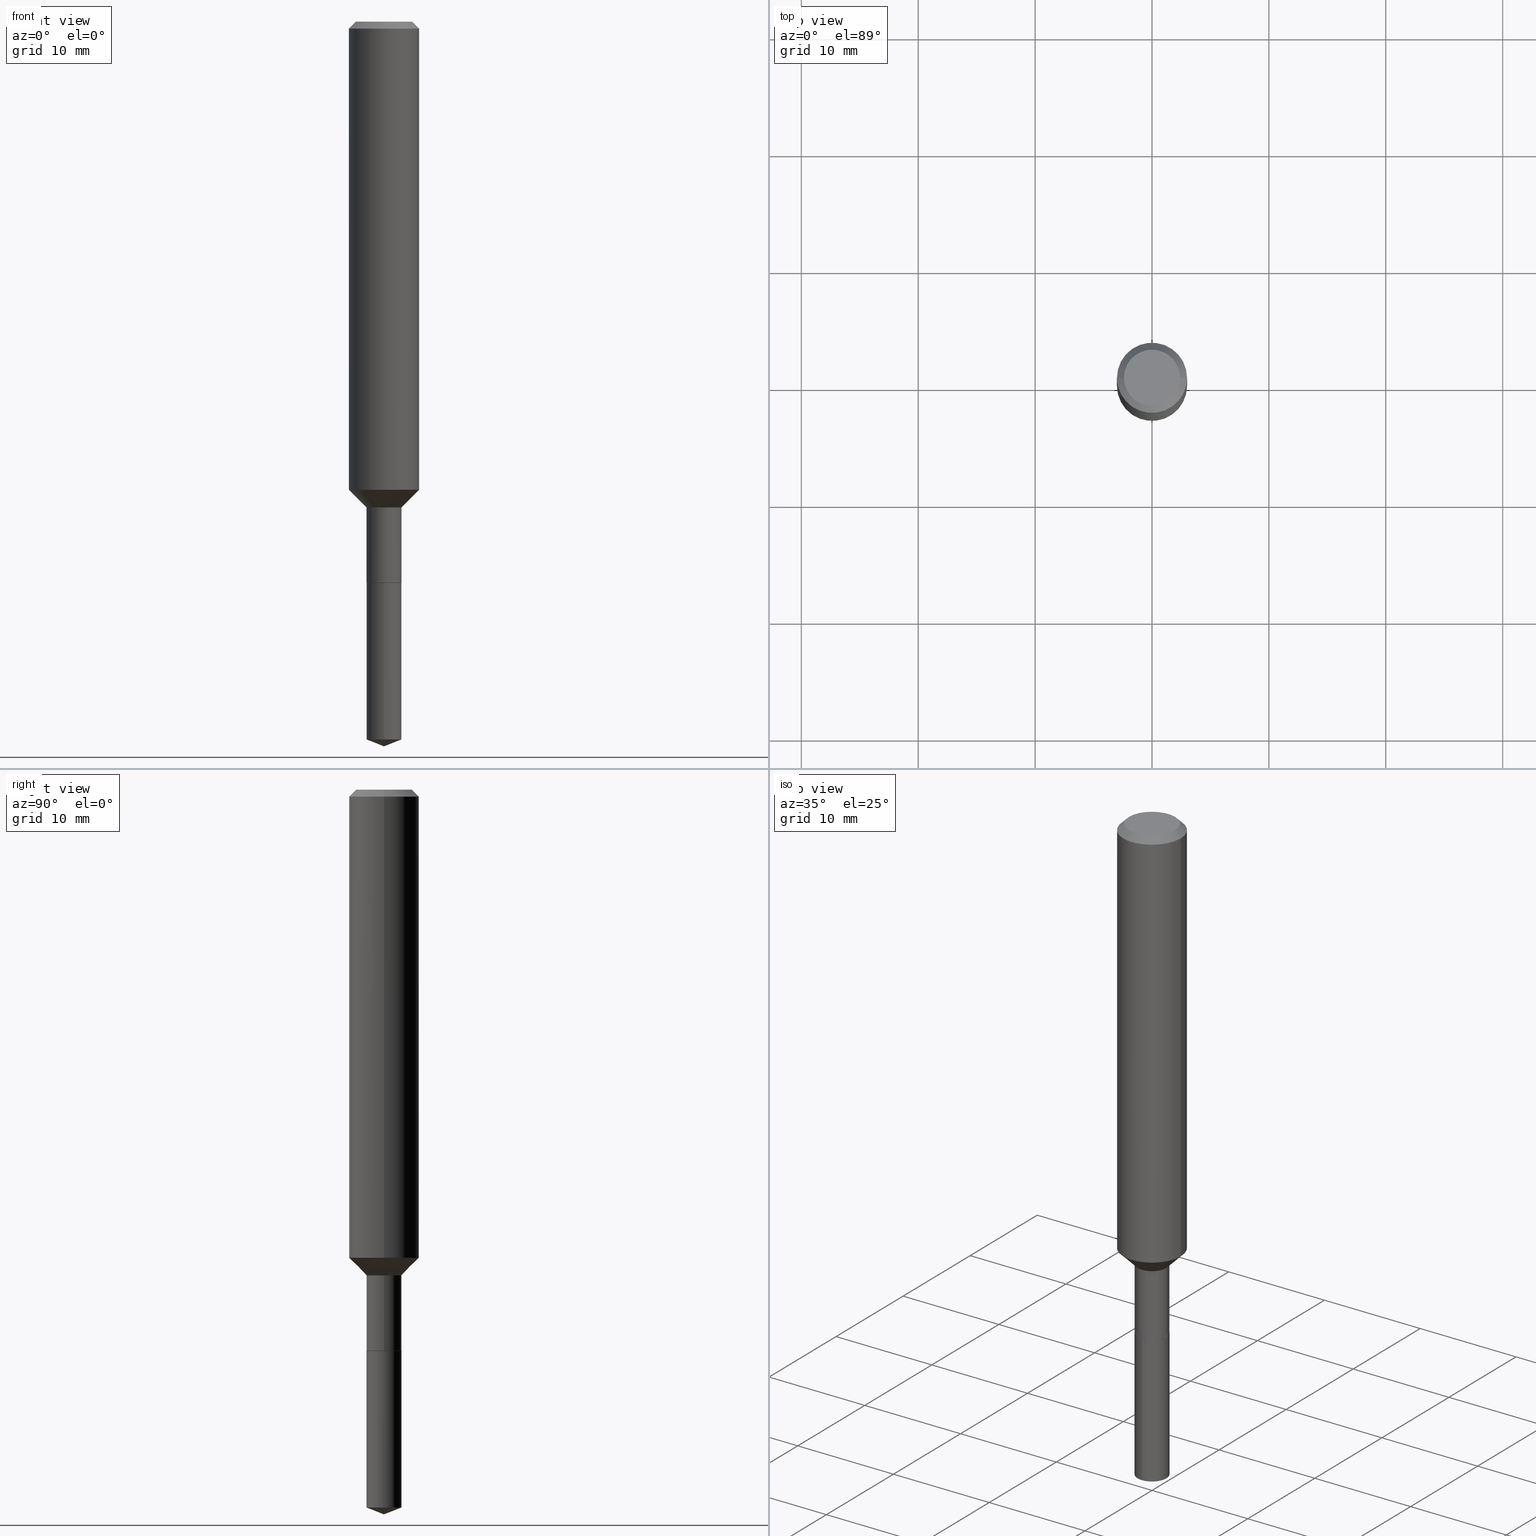
[diagram: canonical four-view strip — front | top / right | iso, engineering-drawing reading convention]
A machine part, canonical four-view strip (front | top / right | iso — engineering-drawing reading convention). The complete STEP part file that produces these views, byte-faithful:
ISO-10303-21;
HEADER;
FILE_DESCRIPTION (( 'STEP AP203' ),
    '1' );
FILE_NAME ('66400.STEP',
    '2024-04-24T22:09:27',
    ( '' ),
    ( '' ),
    'SwSTEP 2.0',
    'SolidWorks 2023',
    '' );
FILE_SCHEMA (( 'CONFIG_CONTROL_DESIGN' ));
ENDSEC;

DATA;
#1 = DATE_AND_TIME ( #181, #434 ) ;
#2 = CARTESIAN_POINT ( 'NONE',  ( 4.621202403048053204E-29, -6.597852286011892490E-15, -1.889700000000000157 ) ) ;
#3 = COORDINATED_UNIVERSAL_TIME_OFFSET ( 5, 0, .BEHIND. ) ;
#4 = DIRECTION ( 'NONE',  ( -6.982962677686265922E-15, -1.000000000000000000, 4.626330217890370914E-15 ) ) ;
#5 = ADVANCED_FACE ( 'NONE', ( #487 ), #78, .T. ) ;
#6 = ADVANCED_FACE ( 'NONE', ( #456 ), #116, .T. ) ;
#7 = COORDINATED_UNIVERSAL_TIME_OFFSET ( 5, 0, .BEHIND. ) ;
#8 = AXIS2_PLACEMENT_3D ( 'NONE', #68, #286, #324 ) ;
#9 = DIRECTION ( 'NONE',  ( 1.000000000000000000, -6.982962677686266711E-15, 4.876176775795935232E-29 ) ) ;
#10 = CC_DESIGN_PERSON_AND_ORGANIZATION_ASSIGNMENT ( #196, #232, ( #223 ) ) ;
#11 = PERSON_AND_ORGANIZATION_ROLE ( 'creator' ) ;
#12 = DIRECTION ( 'NONE',  ( -2.445468806185136597E-29, 3.491481338843145583E-15, 1.000000000000000000 ) ) ;
#13 = DIRECTION ( 'NONE',  ( -2.434988852863249163E-29, 3.506489228481988303E-15, 1.000000000000000000 ) ) ;
#14 = VERTEX_POINT ( 'NONE', #375 ) ;
#15 = PERSON_AND_ORGANIZATION ( #180, #282 ) ;
#16 = FACE_OUTER_BOUND ( 'NONE', #337, .T. ) ;
#17 = APPROVAL_PERSON_ORGANIZATION ( #486, #52, #409 ) ;
#18 = CARTESIAN_POINT ( 'NONE',  ( -0.05854999999999998400, -6.181829514224353895E-15, -1.889700000000000157 ) ) ;
#19 = FACE_OUTER_BOUND ( 'NONE', #391, .T. ) ;
#20 = EDGE_CURVE ( 'NONE', #14, #46, #423, .T. ) ;
#21 = DIRECTION ( 'NONE',  ( 0.7071067811865491270, -2.468850131082274021E-15, 0.7071067811865459074 ) ) ;
#22 = EDGE_LOOP ( 'NONE', ( #360, #191, #289, #396 ) ) ;
#23 = CC_DESIGN_PERSON_AND_ORGANIZATION_ASSIGNMENT ( #431, #47, ( #415 ) ) ;
#24 = CARTESIAN_POINT ( 'NONE',  ( -0.05904999999999988036, -5.734160374244706712E-15, -1.889200000000000212 ) ) ;
#25 = ORIENTED_EDGE ( 'NONE', *, *, #401, .T. ) ;
#26 = DIRECTION ( 'NONE',  ( -2.434988852863248882E-29, 3.506489228481988303E-15, 1.000000000000000000 ) ) ;
#27 = ORIENTED_EDGE ( 'NONE', *, *, #318, .T. ) ;
#28 = ADVANCED_FACE ( 'NONE', ( #149 ), #311, .F. ) ;
#29 = APPLICATION_CONTEXT ( 'configuration controlled 3d designs of mechanical parts and assemblies' ) ;
#30 = FACE_OUTER_BOUND ( 'NONE', #253, .T. ) ;
#31 = ORIENTED_EDGE ( 'NONE', *, *, #112, .F. ) ;
#32 = CIRCLE ( 'NONE', #8, 0.05904999999999998445 ) ;
#33 = CARTESIAN_POINT ( 'NONE',  ( 0.000000000000000000, 0.000000000000000000, 0.000000000000000000 ) ) ;
#34 = VERTEX_POINT ( 'NONE', #461 ) ;
#35 = CARTESIAN_POINT ( 'NONE',  ( 4.000297873157646549E-29, -5.711365174079618268E-15, -1.635800000000000143 ) ) ;
#36 = CARTESIAN_POINT ( 'NONE',  ( 0.05854999999999998400, -7.006704750790423614E-15, -1.889700000000000157 ) ) ;
#37 = EDGE_CURVE ( 'NONE', #174, #439, #309, .T. ) ;
#38 = PERSON_AND_ORGANIZATION_ROLE ( 'design_owner' ) ;
#39 = VERTEX_POINT ( 'NONE', #218 ) ;
#40 = FACE_OUTER_BOUND ( 'NONE', #420, .T. ) ;
#41 = DIRECTION ( 'NONE',  ( 6.611014441532053178E-15, 0.9304175679820252398, 0.3665012267242951927 ) ) ;
#42 = DIRECTION ( 'NONE',  ( 1.000000000000000000, -6.982962677686270655E-15, 0.000000000000000000 ) ) ;
#43 = DIRECTION ( 'NONE',  ( -6.982962677686269077E-15, -1.000000000000000000, 3.498627837350056682E-15 ) ) ;
#44 = EDGE_CURVE ( 'NONE', #452, #331, #339, .T. ) ;
#45 = APPROVAL_STATUS ( 'not_yet_approved' ) ;
#46 = VERTEX_POINT ( 'NONE', #82 ) ;
#47 = PERSON_AND_ORGANIZATION_ROLE ( 'classification_officer' ) ;
#48 = CIRCLE ( 'NONE', #88, 0.05904999999999988036 ) ;
#49 = DIRECTION ( 'NONE',  ( -6.982962677686265922E-15, -1.000000000000000000, 4.626330217890370125E-15 ) ) ;
#50 = DIRECTION ( 'NONE',  ( 2.438088387897960049E-29, -3.491481338843145188E-15, -1.000000000000000000 ) ) ;
#51 = DATE_AND_TIME ( #275, #216 ) ;
#52 = APPROVAL ( #188, 'UNSPECIFIED' ) ;
#53 = ADVANCED_FACE ( 'NONE', ( #224 ), #63, .T. ) ;
#54 = DIRECTION ( 'NONE',  ( 0.7071067811865459074, -7.319954787623249734E-15, -0.7071067811865491270 ) ) ;
#55 = CARTESIAN_POINT ( 'NONE',  ( 2.358133508849003952E-46, -3.366789680499277518E-32, -9.642868896486260050E-18 ) ) ;
#56 = APPROVAL ( #237, 'UNSPECIFIED' ) ;
#57 = VECTOR ( 'NONE', #242, 39.37007874015748143 ) ;
#58 = CC_DESIGN_APPROVAL ( #56, ( #415 ) ) ;
#59 = DIRECTION ( 'NONE',  ( -2.445468806185136597E-29, 3.491481338843145583E-15, 1.000000000000000000 ) ) ;
#60 = EDGE_CURVE ( 'NONE', #69, #448, #427, .T. ) ;
#61 = CARTESIAN_POINT ( 'NONE',  ( 3.855892940152414609E-29, -5.505193201020929624E-15, -1.576750000000000096 ) ) ;
#62 = CARTESIAN_POINT ( 'NONE',  ( 4.621202403048053204E-29, -6.597852286011892490E-15, -1.889700000000000157 ) ) ;
#63 = CONICAL_SURFACE ( 'NONE', #315, 99.94676754583846900, 1.195550537616114406 ) ;
#64 = ORIENTED_EDGE ( 'NONE', *, *, #243, .F. ) ;
#65 = AXIS2_PLACEMENT_3D ( 'NONE', #204, #326, #399 ) ;
#66 = LINE ( 'NONE', #477, #57 ) ;
#67 = VERTEX_POINT ( 'NONE', #84 ) ;
#68 = CARTESIAN_POINT ( 'NONE',  ( 4.621202403048053204E-29, -6.597852286011892490E-15, -1.889700000000000157 ) ) ;
#69 = VERTEX_POINT ( 'NONE', #269 ) ;
#70 = CARTESIAN_POINT ( 'NONE',  ( 0.05904999999999988036, -6.123709120196991610E-15, -1.635800000000000143 ) ) ;
#71 = ORIENTED_EDGE ( 'NONE', *, *, #454, .T. ) ;
#72 = CIRCLE ( 'NONE', #247, 0.05854999999999998400 ) ;
#73 = ORIENTED_EDGE ( 'NONE', *, *, #402, .T. ) ;
#74 =( NAMED_UNIT ( * ) PLANE_ANGLE_UNIT ( ) SI_UNIT ( $, .RADIAN. ) );
#75 = DIRECTION ( 'NONE',  ( -2.438088387897960049E-29, 3.491481338843145188E-15, 1.000000000000000000 ) ) ;
#76 = APPROVAL ( #45, 'UNSPECIFIED' ) ;
#77 =( NAMED_UNIT ( * ) SI_UNIT ( $, .STERADIAN. ) SOLID_ANGLE_UNIT ( ) );
#78 = CYLINDRICAL_SURFACE ( 'NONE', #412, 0.05904999999999988036 ) ;
#79 = AXIS2_PLACEMENT_3D ( 'NONE', #236, #317, #49 ) ;
#80 = LOCAL_TIME ( 18, 9, 27.00000000000000000, #161 ) ;
#81 = LENGTH_MEASURE_WITH_UNIT ( LENGTH_MEASURE( 0.02539999999999999897 ), #304 );
#82 = CARTESIAN_POINT ( 'NONE',  ( 4.195754854663982138E-16, 0.05904999999999338556, -1.889700000000000379 ) ) ;
#83 = APPROVAL_DATE_TIME ( #1, #52 ) ;
#84 = CARTESIAN_POINT ( 'NONE',  ( 0.05904999999999988036, -6.123709120196991610E-15, -1.635800000000000143 ) ) ;
#85 = DIRECTION ( 'NONE',  ( -2.434988852863249163E-29, 3.506489228481988303E-15, 1.000000000000000000 ) ) ;
#86 = AXIS2_PLACEMENT_3D ( 'NONE', #153, #75, #221 ) ;
#87 = DATE_AND_TIME ( #447, #103 ) ;
#88 = AXIS2_PLACEMENT_3D ( 'NONE', #351, #348, #93 ) ;
#89 = CC_DESIGN_SECURITY_CLASSIFICATION ( #415, ( #223 ) ) ;
#90 = CARTESIAN_POINT ( 'NONE',  ( 4.621202403048053204E-29, -6.597852286011892490E-15, -1.889700000000000157 ) ) ;
#91 = EDGE_CURVE ( 'NONE', #294, #439, #358, .T. ) ;
#92 = COORDINATED_UNIVERSAL_TIME_OFFSET ( 5, 0, .BEHIND. ) ;
#93 = DIRECTION ( 'NONE',  ( 1.000000000000000000, -6.982962677686270655E-15, 0.000000000000000000 ) ) ;
#94 = DATE_TIME_ROLE ( 'classification_date' ) ;
#95 = CARTESIAN_POINT ( 'NONE',  ( -0.05904999999999988036, -5.291789688613279563E-15, -1.635800000000000143 ) ) ;
#96 = AXIS2_PLACEMENT_3D ( 'NONE', #335, #85, #372 ) ;
#97 = CARTESIAN_POINT ( 'NONE',  ( 0.1180999999999999966, -9.071566814582237199E-16, -0.02362000000000014088 ) ) ;
#98 = CARTESIAN_POINT ( 'NONE',  ( 0.09447999999999998066, -7.704367267948738690E-16, -1.928573779296752193E-17 ) ) ;
#99 = DIRECTION ( 'NONE',  ( 1.000000000000000000, -6.982962677686265922E-15, 0.000000000000000000 ) ) ;
#100 = ORIENTED_EDGE ( 'NONE', *, *, #363, .F. ) ;
#101 = DIRECTION ( 'NONE',  ( 1.000000000000000000, -6.982962677686265922E-15, 0.000000000000000000 ) ) ;
#102 = ORIENTED_EDGE ( 'NONE', *, *, #332, .T. ) ;
#103 = LOCAL_TIME ( 18, 9, 27.00000000000000000, #7 ) ;
#104 = CYLINDRICAL_SURFACE ( 'NONE', #386, 0.1181000000000000799 ) ;
#105 = ORIENTED_EDGE ( 'NONE', *, *, #91, .F. ) ;
#106 = CARTESIAN_POINT ( 'NONE',  ( 4.621202403048053204E-29, -6.597852286011892490E-15, -1.889700000000000157 ) ) ;
#107 = ORIENTED_EDGE ( 'NONE', *, *, #393, .F. ) ;
#108 = CALENDAR_DATE ( 2024, 24, 4 ) ;
#109 = VERTEX_POINT ( 'NONE', #97 ) ;
#110 = CLOSED_SHELL ( 'NONE', ( #394, #429, #381, #481, #6, #5, #444, #333, #340, #136, #28, #308 ) ) ;
#111 = CIRCLE ( 'NONE', #380, 0.1181000000000001632 ) ;
#112 = EDGE_CURVE ( 'NONE', #39, #67, #48, .T. ) ;
#113 = ORIENTED_EDGE ( 'NONE', *, *, #212, .F. ) ;
#114 = ORIENTED_EDGE ( 'NONE', *, *, #60, .T. ) ;
#115 = CARTESIAN_POINT ( 'NONE',  ( 0.05854999999999998400, -7.006704750790423614E-15, -1.889700000000000157 ) ) ;
#116 = CYLINDRICAL_SURFACE ( 'NONE', #303, 0.05904999999999988036 ) ;
#117 = AXIS2_PLACEMENT_3D ( 'NONE', #349, #164, #382 ) ;
#118 = PERSON_AND_ORGANIZATION ( #180, #282 ) ;
#119 = CARTESIAN_POINT ( 'NONE',  ( 5.983519541380308679E-29, -8.502268739700643296E-15, -2.440900000000000070 ) ) ;
#120 = DIRECTION ( 'NONE',  ( 1.000000000000000000, -6.982962677686267499E-15, 4.875432709231658792E-29 ) ) ;
#121 = CARTESIAN_POINT ( 'NONE',  ( -0.05854999999999998400, -6.179180287050244272E-15, -1.889700000000000157 ) ) ;
#122 = APPROVAL_ROLE ( '' ) ;
#123 = VECTOR ( 'NONE', #430, 39.37007874015748854 ) ;
#124 = DIRECTION ( 'NONE',  ( -2.434988852863248882E-29, 3.506489228481988303E-15, 1.000000000000000000 ) ) ;
#125 = VECTOR ( 'NONE', #262, 39.37007874015748854 ) ;
#126 = LINE ( 'NONE', #95, #230 ) ;
#127 = PRODUCT_DEFINITION ( 'UNKNOWN', '', #223, #235 ) ;
#128 = EDGE_CURVE ( 'NONE', #439, #46, #159, .T. ) ;
#129 = CARTESIAN_POINT ( 'NONE',  ( 4.619979668644960403E-29, -6.596106545342470986E-15, -1.889200000000000212 ) ) ;
#130 = PLANE ( 'NONE',  #147 ) ;
#131 = FACE_OUTER_BOUND ( 'NONE', #483, .T. ) ;
#132 = ORIENTED_EDGE ( 'NONE', *, *, #20, .F. ) ;
#133 = DIRECTION ( 'NONE',  ( 2.445468806185136597E-29, -3.491481338843145583E-15, -1.000000000000000000 ) ) ;
#134 = ORIENTED_EDGE ( 'NONE', *, *, #370, .T. ) ;
#135 = CC_DESIGN_PERSON_AND_ORGANIZATION_ASSIGNMENT ( #118, #38, ( #418 ) ) ;
#136 = ADVANCED_FACE ( 'NONE', ( #16 ), #130, .F. ) ;
#137 = FACE_OUTER_BOUND ( 'NONE', #207, .T. ) ;
#138 = ORIENTED_EDGE ( 'NONE', *, *, #332, .F. ) ;
#139 = VECTOR ( 'NONE', #26, 39.37007874015748143 ) ;
#140 = CONICAL_SURFACE ( 'NONE', #301, 0.1180999999999999966, 0.7853981633974460586 ) ;
#141 = DIRECTION ( 'NONE',  ( -2.445468806185136597E-29, 3.491481338843145583E-15, 1.000000000000000000 ) ) ;
#142 = ORIENTED_EDGE ( 'NONE', *, *, #91, .T. ) ;
#143 = EDGE_CURVE ( 'NONE', #410, #331, #392, .T. ) ;
#144 = DIRECTION ( 'NONE',  ( -2.445468806185136597E-29, 3.491481338843145583E-15, 1.000000000000000000 ) ) ;
#145 = ORIENTED_EDGE ( 'NONE', *, *, #473, .F. ) ;
#146 = ORIENTED_EDGE ( 'NONE', *, *, #284, .F. ) ;
#147 = AXIS2_PLACEMENT_3D ( 'NONE', #55, #50, #202 ) ;
#148 = DIRECTION ( 'NONE',  ( -6.982962677686265922E-15, -1.000000000000000000, 4.626330217890370914E-15 ) ) ;
#149 = FACE_OUTER_BOUND ( 'NONE', #478, .T. ) ;
#150 = LINE ( 'NONE', #261, #155 ) ;
#151 = ORIENTED_EDGE ( 'NONE', *, *, #128, .T. ) ;
#152 = CYLINDRICAL_SURFACE ( 'NONE', #356, 0.05904999999999998445 ) ;
#153 = CARTESIAN_POINT ( 'NONE',  ( 4.621202403048053204E-29, -6.597852286011892490E-15, -1.889700000000000157 ) ) ;
#154 = CONICAL_SURFACE ( 'NONE', #162, 99.94676754583846900, 1.195550537616114406 ) ;
#155 = VECTOR ( 'NONE', #411, 39.37007874015748143 ) ;
#156 = PERSON_AND_ORGANIZATION ( #180, #282 ) ;
#157 = DIRECTION ( 'NONE',  ( -2.434988852863249163E-29, 3.506489228481988303E-15, 1.000000000000000000 ) ) ;
#158 = CARTESIAN_POINT ( 'NONE',  ( 0.1180999999999999966, -8.926936027602933910E-16, -0.02362000000000014088 ) ) ;
#159 = LINE ( 'NONE', #203, #201 ) ;
#160 = VERTEX_POINT ( 'NONE', #353 ) ;
#161 = COORDINATED_UNIVERSAL_TIME_OFFSET ( 5, 0, .BEHIND. ) ;
#162 = AXIS2_PLACEMENT_3D ( 'NONE', #387, #13, #346 ) ;
#163 = AXIS2_PLACEMENT_3D ( 'NONE', #374, #341, #404 ) ;
#164 = DIRECTION ( 'NONE',  ( -2.434988852863249163E-29, 3.506489228481988303E-15, 1.000000000000000000 ) ) ;
#165 = DIRECTION ( 'NONE',  ( 6.982962677686265922E-15, 1.000000000000000000, -3.506489228481988303E-15 ) ) ;
#166 = DIRECTION ( 'NONE',  ( 1.000000000000000000, -6.982962677686270655E-15, 0.000000000000000000 ) ) ;
#167 = VECTOR ( 'NONE', #229, 39.37007874015748143 ) ;
#168 = LINE ( 'NONE', #173, #139 ) ;
#169 = APPROVAL_PERSON_ORGANIZATION ( #228, #56, #122 ) ;
#170 = ORIENTED_EDGE ( 'NONE', *, *, #284, .T. ) ;
#171 = DIRECTION ( 'NONE',  ( 1.000000000000000000, -6.982962677686265922E-15, 0.000000000000000000 ) ) ;
#172 = ORIENTED_EDGE ( 'NONE', *, *, #143, .F. ) ;
#173 = CARTESIAN_POINT ( 'NONE',  ( -4.123439461173276378E-16, -0.05905000000000658333, -1.889699999999999713 ) ) ;
#174 = VERTEX_POINT ( 'NONE', #470 ) ;
#175 = CARTESIAN_POINT ( 'NONE',  ( 4.195754854663982138E-16, 0.05904999999999154675, -2.417639586414937813 ) ) ;
#176 = EDGE_LOOP ( 'NONE', ( #71, #170, #249, #446 ) ) ;
#177 = AXIS2_PLACEMENT_3D ( 'NONE', #438, #475, #210 ) ;
#178 = CARTESIAN_POINT ( 'NONE',  ( -0.1181000000000000799, 8.391509709326788873E-16, -5.809262341591047988E-30 ) ) ;
#179 = ORIENTED_EDGE ( 'NONE', *, *, #370, .F. ) ;
#180 = PERSON ( 'UNSPECIFIED', 'UNSPECIFIED', 'UNSPECIFIED', ('UNSPECIFIED'), ('UNSPECIFIED'), ('UNSPECIFIED') ) ;
#181 = CALENDAR_DATE ( 2024, 24, 4 ) ;
#182 = DIRECTION ( 'NONE',  ( -2.445468806185136597E-29, 3.491481338843145583E-15, 1.000000000000000000 ) ) ;
#183 = ORIENTED_EDGE ( 'NONE', *, *, #243, .T. ) ;
#184 = AXIS2_PLACEMENT_3D ( 'NONE', #129, #462, #281 ) ;
#185 = CONICAL_SURFACE ( 'NONE', #163, 0.05904999999999988036, 0.7853981633974506105 ) ;
#186 = CARTESIAN_POINT ( 'NONE',  ( 4.621202403048053204E-29, -6.597852286011892490E-15, -1.889700000000000157 ) ) ;
#187 = CARTESIAN_POINT ( 'NONE',  ( 0.000000000000000000, 0.000000000000000000, 0.000000000000000000 ) ) ;
#188 = APPROVAL_STATUS ( 'not_yet_approved' ) ;
#189 = ORIENTED_EDGE ( 'NONE', *, *, #143, .T. ) ;
#190 = APPROVAL_ROLE ( '' ) ;
#191 = ORIENTED_EDGE ( 'NONE', *, *, #473, .T. ) ;
#192 = CONICAL_SURFACE ( 'NONE', #465, 0.1180999999999999966, 0.7853981633974460586 ) ;
#193 = APPROVAL_DATE_TIME ( #51, #56 ) ;
#194 = ADVANCED_FACE ( 'NONE', ( #19 ), #154, .T. ) ;
#195 = CARTESIAN_POINT ( 'NONE',  ( 5.776197320209327532E-31, -8.246878922347559293E-17, -0.02362000000000014088 ) ) ;
#196 = PERSON_AND_ORGANIZATION ( #180, #282 ) ;
#197 = DIRECTION ( 'NONE',  ( 1.000000000000000000, -6.982962677686270655E-15, 0.000000000000000000 ) ) ;
#198 = ORIENTED_EDGE ( 'NONE', *, *, #128, .F. ) ;
#199 = CYLINDRICAL_SURFACE ( 'NONE', #117, 0.05904999999999998445 ) ;
#200 = EDGE_CURVE ( 'NONE', #160, #34, #440, .T. ) ;
#201 = VECTOR ( 'NONE', #124, 39.37007874015748143 ) ;
#202 = DIRECTION ( 'NONE',  ( -1.000000000000000000, 6.982962677686265922E-15, -4.876176775795935793E-29 ) ) ;
#203 = CARTESIAN_POINT ( 'NONE',  ( 4.195754854663851976E-16, 0.05904999999999338556, -1.889700000000000379 ) ) ;
#204 = CARTESIAN_POINT ( 'NONE',  ( 4.716267017698007905E-46, -6.733579360998555036E-32, -1.928573779297252010E-17 ) ) ;
#205 = VECTOR ( 'NONE', #252, 39.37007874015748143 ) ;
#206 = DIRECTION ( 'NONE',  ( -6.497071151882107214E-15, -0.9304175679820226863, 0.3665012267243017985 ) ) ;
#207 = EDGE_LOOP ( 'NONE', ( #489, #405, #271, #369 ) ) ;
#208 = LINE ( 'NONE', #328, #240 ) ;
#209 = VERTEX_POINT ( 'NONE', #121 ) ;
#210 = DIRECTION ( 'NONE',  ( 1.000000000000000000, -6.982962677686266711E-15, 4.876176775795936353E-29 ) ) ;
#211 = ORIENTED_EDGE ( 'NONE', *, *, #200, .T. ) ;
#212 = EDGE_CURVE ( 'NONE', #209, #410, #319, .T. ) ;
#213 = DIRECTION ( 'NONE',  ( -1.000000000000000000, 6.982962677686266711E-15, 0.000000000000000000 ) ) ;
#214 = CONICAL_SURFACE ( 'NONE', #449, 0.05854999999999998400, 0.7853981633974482790 ) ;
#215 = ORIENTED_EDGE ( 'NONE', *, *, #334, .T. ) ;
#216 = LOCAL_TIME ( 18, 9, 27.00000000000000000, #92 ) ;
#217 = ORIENTED_EDGE ( 'NONE', *, *, #393, .T. ) ;
#218 = CARTESIAN_POINT ( 'NONE',  ( -0.05904999999999988036, -5.734160374244706712E-15, -1.635800000000000143 ) ) ;
#219 = ADVANCED_FACE ( 'NONE', ( #468 ), #428, .F. ) ;
#220 =( CONVERSION_BASED_UNIT ( 'INCH', #81 ) LENGTH_UNIT ( ) NAMED_UNIT ( #408 ) );
#221 = DIRECTION ( 'NONE',  ( 1.000000000000000000, -6.982962677686265922E-15, 4.876176775795935793E-29 ) ) ;
#222 = AXIS2_PLACEMENT_3D ( 'NONE', #313, #464, #166 ) ;
#223 = PRODUCT_DEFINITION_FORMATION_WITH_SPECIFIED_SOURCE ( 'ANY', '', #418, .NOT_KNOWN. ) ;
#224 = FACE_OUTER_BOUND ( 'NONE', #459, .T. ) ;
#225 = DATE_TIME_ROLE ( 'creation_date' ) ;
#226 = VERTEX_POINT ( 'NONE', #283 ) ;
#227 = EDGE_CURVE ( 'NONE', #439, #294, #291, .T. ) ;
#228 = PERSON_AND_ORGANIZATION ( #180, #282 ) ;
#229 = DIRECTION ( 'NONE',  ( -0.7071067811865459074, 2.468850131082240100E-15, -0.7071067811865491270 ) ) ;
#230 = VECTOR ( 'NONE', #385, 39.37007874015748143 ) ;
#231 = AXIS2_PLACEMENT_3D ( 'NONE', #484, #144, #297 ) ;
#232 = PERSON_AND_ORGANIZATION_ROLE ( 'design_supplier' ) ;
#233 = DIRECTION ( 'NONE',  ( -2.445468806185136597E-29, 3.491481338843145583E-15, 1.000000000000000000 ) ) ;
#234 = ORIENTED_EDGE ( 'NONE', *, *, #314, .T. ) ;
#235 = DESIGN_CONTEXT ( 'detailed design', #29, 'design' ) ;
#236 = CARTESIAN_POINT ( 'NONE',  ( 5.906729410953660038E-29, -8.449066759065107176E-15, -2.417639586414937813 ) ) ;
#237 = APPROVAL_STATUS ( 'not_yet_approved' ) ;
#238 = FACE_OUTER_BOUND ( 'NONE', #384, .T. ) ;
#239 = AXIS2_PLACEMENT_3D ( 'NONE', #472, #359, #171 ) ;
#240 = VECTOR ( 'NONE', #206, 39.37007874015748854 ) ;
#241 = CARTESIAN_POINT ( 'NONE',  ( -0.1180999999999999966, 7.422191030112725094E-16, -0.02362000000000014088 ) ) ;
#242 = DIRECTION ( 'NONE',  ( -2.445468806185136877E-29, 3.491481338843145188E-15, 1.000000000000000000 ) ) ;
#243 = EDGE_CURVE ( 'NONE', #448, #109, #435, .T. ) ;
#244 = EDGE_CURVE ( 'NONE', #226, #109, #350, .T. ) ;
#245 = FACE_OUTER_BOUND ( 'NONE', #323, .T. ) ;
#246 = ORIENTED_EDGE ( 'NONE', *, *, #37, .F. ) ;
#247 = AXIS2_PLACEMENT_3D ( 'NONE', #62, #368, #99 ) ;
#248 = LINE ( 'NONE', #70, #480 ) ;
#249 = ORIENTED_EDGE ( 'NONE', *, *, #200, .F. ) ;
#250 = FACE_OUTER_BOUND ( 'NONE', #364, .T. ) ;
#251 = ORIENTED_EDGE ( 'NONE', *, *, #352, .F. ) ;
#252 = DIRECTION ( 'NONE',  ( -2.445468806185136877E-29, 3.491481338843145188E-15, 1.000000000000000000 ) ) ;
#253 = EDGE_LOOP ( 'NONE', ( #138, #183, #255, #327 ) ) ;
#254 = CLOSED_SHELL ( 'NONE', ( #267, #53, #194, #490, #219 ) ) ;
#255 = ORIENTED_EDGE ( 'NONE', *, *, #302, .T. ) ;
#256 = LOCAL_TIME ( 18, 9, 27.00000000000000000, #416 ) ;
#257 = DIRECTION ( 'NONE',  ( -2.434988852863249163E-29, 3.506489228481988303E-15, 1.000000000000000000 ) ) ;
#258 = ORIENTED_EDGE ( 'NONE', *, *, #314, .F. ) ;
#259 = DIRECTION ( 'NONE',  ( 0.000000000000000000, 0.000000000000000000, 1.000000000000000000 ) ) ;
#260 = ORIENTED_EDGE ( 'NONE', *, *, #421, .F. ) ;
#261 = CARTESIAN_POINT ( 'NONE',  ( -0.05904999999999988036, 4.195754854663383097E-16, -2.904631170795515936E-30 ) ) ;
#262 = DIRECTION ( 'NONE',  ( 0.7071067811865474617, -2.468850131082256666E-15, 0.7071067811865474617 ) ) ;
#263 = AXIS2_PLACEMENT_3D ( 'NONE', #268, #417, #120 ) ;
#264 = CIRCLE ( 'NONE', #184, 0.05904999999999988036 ) ;
#265 = CIRCLE ( 'NONE', #274, 0.05904999999999988036 ) ;
#266 = APPLICATION_PROTOCOL_DEFINITION ( 'international standard', 'config_control_design', 1994, #29 ) ;
#267 = ADVANCED_FACE ( 'NONE', ( #238 ), #199, .T. ) ;
#268 = CARTESIAN_POINT ( 'NONE',  ( 4.716267017698007905E-46, -6.733579360998555036E-32, -1.928573779297252010E-17 ) ) ;
#269 = CARTESIAN_POINT ( 'NONE',  ( -0.09447999999999998066, 7.009847083995354710E-16, -1.928573779297727792E-17 ) ) ;
#270 = DIRECTION ( 'NONE',  ( -2.445468806185136597E-29, 3.491481338843145583E-15, 1.000000000000000000 ) ) ;
#271 = ORIENTED_EDGE ( 'NONE', *, *, #285, .F. ) ;
#272 = MANIFOLD_SOLID_BREP ( 'Body-Move/Copy2[1]', #254 ) ;
#273 = AXIS2_PLACEMENT_3D ( 'NONE', #195, #12, #312 ) ;
#274 = AXIS2_PLACEMENT_3D ( 'NONE', #35, #299, #42 ) ;
#275 = CALENDAR_DATE ( 2024, 24, 4 ) ;
#276 = CARTESIAN_POINT ( 'NONE',  ( 4.619979668644960403E-29, -6.596106545342470986E-15, -1.889200000000000212 ) ) ;
#277 = ADVANCED_BREP_SHAPE_REPRESENTATION ( '66400', ( #272, #279, #460 ), #441 ) ;
#278 = CARTESIAN_POINT ( 'NONE',  ( 4.621202403048053204E-29, -6.597852286011892490E-15, -1.889700000000000157 ) ) ;
#279 = MANIFOLD_SOLID_BREP ( 'Body-Move/Copy2[2]', #110 ) ;
#280 = DATE_AND_TIME ( #467, #80 ) ;
#281 = DIRECTION ( 'NONE',  ( 1.000000000000000000, -6.982962677686270655E-15, 0.000000000000000000 ) ) ;
#282 = ORGANIZATION ( 'UNSPECIFIED', 'UNSPECIFIED', '' ) ;
#283 = CARTESIAN_POINT ( 'NONE',  ( -0.1180999999999999966, -1.954680024189523160E-15, -0.02362000000000014088 ) ) ;
#284 = EDGE_CURVE ( 'NONE', #39, #34, #126, .T. ) ;
#285 = EDGE_CURVE ( 'NONE', #331, #410, #264, .T. ) ;
#286 = DIRECTION ( 'NONE',  ( -2.434988852863249163E-29, 3.506489228481988303E-15, 1.000000000000000000 ) ) ;
#287 = ORIENTED_EDGE ( 'NONE', *, *, #37, .T. ) ;
#288 = CARTESIAN_POINT ( 'NONE',  ( 5.776197320209327532E-31, -8.246878922347559293E-17, -0.02362000000000014088 ) ) ;
#289 = ORIENTED_EDGE ( 'NONE', *, *, #454, .F. ) ;
#290 = EDGE_CURVE ( 'NONE', #69, #226, #432, .T. ) ;
#291 = CIRCLE ( 'NONE', #79, 0.05904999999999999138 ) ;
#292 = CARTESIAN_POINT ( 'NONE',  ( 5.776197320209327532E-31, -8.246878922347559293E-17, -0.02362000000000014088 ) ) ;
#293 = CONICAL_SURFACE ( 'NONE', #231, 0.05904999999999988036, 0.7853981633974506105 ) ;
#294 = VERTEX_POINT ( 'NONE', #379 ) ;
#295 = DIRECTION ( 'NONE',  ( 1.000000000000000000, -6.982962677686270655E-15, 0.000000000000000000 ) ) ;
#296 = ORIENTED_EDGE ( 'NONE', *, *, #20, .T. ) ;
#297 = DIRECTION ( 'NONE',  ( 1.000000000000000000, -6.982962677686270655E-15, 0.000000000000000000 ) ) ;
#298 = EDGE_LOOP ( 'NONE', ( #146, #300, #215, #100 ) ) ;
#299 = DIRECTION ( 'NONE',  ( -2.445468806185136597E-29, 3.491481338843145583E-15, 1.000000000000000000 ) ) ;
#300 = ORIENTED_EDGE ( 'NONE', *, *, #112, .T. ) ;
#301 = AXIS2_PLACEMENT_3D ( 'NONE', #288, #361, #330 ) ;
#302 = EDGE_CURVE ( 'NONE', #109, #226, #433, .T. ) ;
#303 = AXIS2_PLACEMENT_3D ( 'NONE', #187, #407, #344 ) ;
#304 =( LENGTH_UNIT ( ) NAMED_UNIT ( * ) SI_UNIT ( $, .METRE. ) );
#305 = ORIENTED_EDGE ( 'NONE', *, *, #302, .F. ) ;
#306 = PERSON_AND_ORGANIZATION_ROLE ( 'creator' ) ;
#307 = EDGE_LOOP ( 'NONE', ( #113, #27, #400, #172 ) ) ;
#308 = ADVANCED_FACE ( 'NONE', ( #424 ), #214, .T. ) ;
#309 = LINE ( 'NONE', #119, #451 ) ;
#310 = APPROVAL_PERSON_ORGANIZATION ( #377, #76, #190 ) ;
#311 = PLANE ( 'NONE',  #86 ) ;
#312 = DIRECTION ( 'NONE',  ( 1.000000000000000000, -6.982962677686266711E-15, 0.000000000000000000 ) ) ;
#313 = CARTESIAN_POINT ( 'NONE',  ( 3.855892940152414609E-29, -5.505193201020929624E-15, -1.576750000000000096 ) ) ;
#314 = EDGE_CURVE ( 'NONE', #34, #226, #442, .T. ) ;
#315 = AXIS2_PLACEMENT_3D ( 'NONE', #373, #376, #43 ) ;
#316 = DIRECTION ( 'NONE',  ( 2.434988852863248882E-29, -3.506489228481988303E-15, -1.000000000000000000 ) ) ;
#317 = DIRECTION ( 'NONE',  ( -2.434988852863249163E-29, 3.506489228481988303E-15, 1.000000000000000000 ) ) ;
#318 = EDGE_CURVE ( 'NONE', #209, #452, #367, .T. ) ;
#319 = LINE ( 'NONE', #18, #123 ) ;
#320 = AXIS2_PLACEMENT_3D ( 'NONE', #276, #59, #197 ) ;
#321 = CC_DESIGN_APPROVAL ( #76, ( #223 ) ) ;
#322 = DIRECTION ( 'NONE',  ( -2.445468806185136597E-29, 3.491481338843145583E-15, 1.000000000000000000 ) ) ;
#323 = EDGE_LOOP ( 'NONE', ( #258, #443, #217, #485 ) ) ;
#324 = DIRECTION ( 'NONE',  ( -6.982962677686265922E-15, -1.000000000000000000, 4.626330217890370914E-15 ) ) ;
#325 = ORIENTED_EDGE ( 'NONE', *, *, #227, .T. ) ;
#326 = DIRECTION ( 'NONE',  ( -2.445468806185136597E-29, 3.491481338843145583E-15, 1.000000000000000000 ) ) ;
#327 = ORIENTED_EDGE ( 'NONE', *, *, #290, .F. ) ;
#328 = CARTESIAN_POINT ( 'NONE',  ( 5.943564290953905470E-29, -8.558989557801686786E-15, -2.440900000000000070 ) ) ;
#329 = ORIENTED_EDGE ( 'NONE', *, *, #244, .T. ) ;
#330 = DIRECTION ( 'NONE',  ( -1.000000000000000000, 6.982962677686266711E-15, 0.000000000000000000 ) ) ;
#331 = VERTEX_POINT ( 'NONE', #445 ) ;
#332 = EDGE_CURVE ( 'NONE', #448, #69, #471, .T. ) ;
#333 = ADVANCED_FACE ( 'NONE', ( #245 ), #365, .T. ) ;
#334 = EDGE_CURVE ( 'NONE', #67, #160, #248, .T. ) ;
#335 = CARTESIAN_POINT ( 'NONE',  ( 5.906729410953660038E-29, -8.449066759065107176E-15, -2.417639586414937813 ) ) ;
#336 = CARTESIAN_POINT ( 'NONE',  ( 0.000000000000000000, 0.000000000000000000, 0.000000000000000000 ) ) ;
#337 = EDGE_LOOP ( 'NONE', ( #114, #102 ) ) ;
#338 = DIRECTION ( 'NONE',  ( 1.000000000000000000, 0.000000000000000000, 0.000000000000000000 ) ) ;
#339 = LINE ( 'NONE', #36, #125 ) ;
#340 = ADVANCED_FACE ( 'NONE', ( #131 ), #192, .T. ) ;
#341 = DIRECTION ( 'NONE',  ( -2.445468806185136597E-29, 3.491481338843145583E-15, 1.000000000000000000 ) ) ;
#342 = CARTESIAN_POINT ( 'NONE',  ( 0.000000000000000000, 0.000000000000000000, 0.000000000000000000 ) ) ;
#343 = PRODUCT_RELATED_PRODUCT_CATEGORY ( 'detail', '', ( #418 ) ) ;
#344 = DIRECTION ( 'NONE',  ( 1.000000000000000000, -6.982962677686266711E-15, 4.876176775795935232E-29 ) ) ;
#345 = SHAPE_DEFINITION_REPRESENTATION ( #422, #277 ) ;
#346 = DIRECTION ( 'NONE',  ( -6.982962677686269077E-15, -1.000000000000000000, 3.498627837350056682E-15 ) ) ;
#347 = APPROVAL_DATE_TIME ( #87, #76 ) ;
#348 = DIRECTION ( 'NONE',  ( -2.445468806185136597E-29, 3.491481338843145583E-15, 1.000000000000000000 ) ) ;
#349 = CARTESIAN_POINT ( 'NONE',  ( 4.621202403048053204E-29, -6.597852286011892490E-15, -1.889700000000000157 ) ) ;
#350 = CIRCLE ( 'NONE', #355, 0.1180999999999999966 ) ;
#351 = CARTESIAN_POINT ( 'NONE',  ( 4.000297873157646549E-29, -5.711365174079618268E-15, -1.635800000000000143 ) ) ;
#352 = EDGE_CURVE ( 'NONE', #452, #209, #72, .T. ) ;
#353 = CARTESIAN_POINT ( 'NONE',  ( 0.1181000000000001632, -6.329881093255679464E-15, -1.576750000000000096 ) ) ;
#354 = DIRECTION ( 'NONE',  ( 1.000000000000000000, -6.982962677686265922E-15, 0.000000000000000000 ) ) ;
#355 = AXIS2_PLACEMENT_3D ( 'NONE', #469, #270, #383 ) ;
#356 = AXIS2_PLACEMENT_3D ( 'NONE', #186, #257, #148 ) ;
#357 = APPLICATION_CONTEXT ( 'configuration controlled 3d designs of mechanical parts and assemblies' ) ;
#358 = CIRCLE ( 'NONE', #96, 0.05904999999999999138 ) ;
#359 = DIRECTION ( 'NONE',  ( -2.445468806185136597E-29, 3.491481338843145583E-15, 1.000000000000000000 ) ) ;
#360 = ORIENTED_EDGE ( 'NONE', *, *, #285, .T. ) ;
#361 = DIRECTION ( 'NONE',  ( 2.445468806185136597E-29, -3.491481338843145583E-15, -1.000000000000000000 ) ) ;
#362 = CC_DESIGN_PERSON_AND_ORGANIZATION_ASSIGNMENT ( #156, #306, ( #127 ) ) ;
#363 = EDGE_CURVE ( 'NONE', #34, #160, #111, .T. ) ;
#364 = EDGE_LOOP ( 'NONE', ( #211, #234, #305, #107 ) ) ;
#365 = CYLINDRICAL_SURFACE ( 'NONE', #177, 0.1181000000000000799 ) ;
#366 = ORIENTED_EDGE ( 'NONE', *, *, #318, .F. ) ;
#367 = CIRCLE ( 'NONE', #488, 0.05854999999999998400 ) ;
#368 = DIRECTION ( 'NONE',  ( -2.445468806185136597E-29, 3.491481338843145583E-15, 1.000000000000000000 ) ) ;
#369 = ORIENTED_EDGE ( 'NONE', *, *, #44, .F. ) ;
#370 = EDGE_CURVE ( 'NONE', #294, #14, #168, .T. ) ;
#371 = UNCERTAINTY_MEASURE_WITH_UNIT (LENGTH_MEASURE( 1.000000000000000082E-05 ), #220, 'distance_accuracy_value', 'NONE');
#372 = DIRECTION ( 'NONE',  ( -6.982962677686265922E-15, -1.000000000000000000, 4.626330217890370125E-15 ) ) ;
#373 = CARTESIAN_POINT ( 'NONE',  ( -8.990233460988559297E-28, 1.295201278780987653E-13, 36.92917874015748225 ) ) ;
#374 = CARTESIAN_POINT ( 'NONE',  ( 4.000297873157646549E-29, -5.711365174079618268E-15, -1.635800000000000143 ) ) ;
#375 = CARTESIAN_POINT ( 'NONE',  ( -4.123439461173276378E-16, -0.05905000000000658333, -1.889699999999999713 ) ) ;
#376 = DIRECTION ( 'NONE',  ( -2.434988852863249163E-29, 3.506489228481988303E-15, 1.000000000000000000 ) ) ;
#377 = PERSON_AND_ORGANIZATION ( #180, #282 ) ;
#378 = ORIENTED_EDGE ( 'NONE', *, *, #290, .T. ) ;
#379 = CARTESIAN_POINT ( 'NONE',  ( -4.123439461173149174E-16, -0.05905000000000844990, -2.417639586414937369 ) ) ;
#380 = AXIS2_PLACEMENT_3D ( 'NONE', #61, #395, #295 ) ;
#381 = ADVANCED_FACE ( 'NONE', ( #250 ), #104, .T. ) ;
#382 = DIRECTION ( 'NONE',  ( -6.982962677686265922E-15, -1.000000000000000000, 4.626330217890370914E-15 ) ) ;
#383 = DIRECTION ( 'NONE',  ( 1.000000000000000000, -6.982962677686266711E-15, 0.000000000000000000 ) ) ;
#384 = EDGE_LOOP ( 'NONE', ( #142, #151, #132, #179 ) ) ;
#385 = DIRECTION ( 'NONE',  ( -0.7071067811865491270, 7.493145998870360471E-15, 0.7071067811865459074 ) ) ;
#386 = AXIS2_PLACEMENT_3D ( 'NONE', #33, #322, #436 ) ;
#387 = CARTESIAN_POINT ( 'NONE',  ( -8.990233460988559297E-28, 1.295201278780987653E-13, 36.92917874015748225 ) ) ;
#388 = CC_DESIGN_PERSON_AND_ORGANIZATION_ASSIGNMENT ( #15, #11, ( #223 ) ) ;
#389 = CARTESIAN_POINT ( 'NONE',  ( 0.05904999999999988036, -4.123439461173731945E-16, 2.879382386107493914E-30 ) ) ;
#390 = LINE ( 'NONE', #389, #403 ) ;
#391 = EDGE_LOOP ( 'NONE', ( #246, #25, #476 ) ) ;
#392 = CIRCLE ( 'NONE', #320, 0.05904999999999988036 ) ;
#393 = EDGE_CURVE ( 'NONE', #160, #109, #66, .T. ) ;
#394 = ADVANCED_FACE ( 'NONE', ( #137 ), #458, .T. ) ;
#395 = DIRECTION ( 'NONE',  ( -2.445468806185136597E-29, 3.491481338843145583E-15, 1.000000000000000000 ) ) ;
#396 = ORIENTED_EDGE ( 'NONE', *, *, #402, .F. ) ;
#397 = DIRECTION ( 'NONE',  ( -2.445468806185136877E-29, 3.491481338843145188E-15, 1.000000000000000000 ) ) ;
#398 = ORIENTED_EDGE ( 'NONE', *, *, #401, .F. ) ;
#399 = DIRECTION ( 'NONE',  ( 1.000000000000000000, -6.982962677686267499E-15, 4.875432709231658792E-29 ) ) ;
#400 = ORIENTED_EDGE ( 'NONE', *, *, #44, .T. ) ;
#401 = EDGE_CURVE ( 'NONE', #174, #294, #208, .T. ) ;
#402 = EDGE_CURVE ( 'NONE', #331, #67, #390, .T. ) ;
#403 = VECTOR ( 'NONE', #397, 39.37007874015748143 ) ;
#404 = DIRECTION ( 'NONE',  ( 1.000000000000000000, -6.982962677686270655E-15, 0.000000000000000000 ) ) ;
#405 = ORIENTED_EDGE ( 'NONE', *, *, #212, .T. ) ;
#406 = FACE_OUTER_BOUND ( 'NONE', #176, .T. ) ;
#407 = DIRECTION ( 'NONE',  ( -2.445468806185136597E-29, 3.491481338843145583E-15, 1.000000000000000000 ) ) ;
#408 = DIMENSIONAL_EXPONENTS ( 1.000000000000000000, 0.000000000000000000, 0.000000000000000000, 0.000000000000000000, 0.000000000000000000, 0.000000000000000000, 0.000000000000000000 ) ;
#409 = APPROVAL_ROLE ( '' ) ;
#410 = VERTEX_POINT ( 'NONE', #24 ) ;
#411 = DIRECTION ( 'NONE',  ( -2.445468806185136877E-29, 3.491481338843145188E-15, 1.000000000000000000 ) ) ;
#412 = AXIS2_PLACEMENT_3D ( 'NONE', #342, #182, #9 ) ;
#413 = VECTOR ( 'NONE', #54, 39.37007874015748143 ) ;
#414 = ORIENTED_EDGE ( 'NONE', *, *, #421, .T. ) ;
#415 = SECURITY_CLASSIFICATION ( '', '', #419 ) ;
#416 = COORDINATED_UNIVERSAL_TIME_OFFSET ( 5, 0, .BEHIND. ) ;
#417 = DIRECTION ( 'NONE',  ( -2.445468806185136597E-29, 3.491481338843145583E-15, 1.000000000000000000 ) ) ;
#418 = PRODUCT ( '66400', '66400', '', ( #450 ) ) ;
#419 = SECURITY_CLASSIFICATION_LEVEL ( 'unclassified' ) ;
#420 = EDGE_LOOP ( 'NONE', ( #198, #325, #134, #260 ) ) ;
#421 = EDGE_CURVE ( 'NONE', #46, #14, #32, .T. ) ;
#422 = PRODUCT_DEFINITION_SHAPE ( 'NONE', 'NONE',  #127 ) ;
#423 = CIRCLE ( 'NONE', #479, 0.05904999999999998445 ) ;
#424 = FACE_OUTER_BOUND ( 'NONE', #307, .T. ) ;
#425 = AXIS2_PLACEMENT_3D ( 'NONE', #278, #316, #165 ) ;
#426 = CC_DESIGN_DATE_AND_TIME_ASSIGNMENT ( #455, #225, ( #127 ) ) ;
#427 = CIRCLE ( 'NONE', #263, 0.09447999999999998066 ) ;
#428 = PLANE ( 'NONE',  #425 ) ;
#429 = ADVANCED_FACE ( 'NONE', ( #30 ), #140, .T. ) ;
#430 = DIRECTION ( 'NONE',  ( -0.7071067811865474617, 7.493145998870352582E-15, 0.7071067811865474617 ) ) ;
#431 = PERSON_AND_ORGANIZATION ( #180, #282 ) ;
#432 = LINE ( 'NONE', #241, #167 ) ;
#433 = CIRCLE ( 'NONE', #273, 0.1180999999999999966 ) ;
#434 = LOCAL_TIME ( 18, 9, 27.00000000000000000, #3 ) ;
#435 = LINE ( 'NONE', #158, #413 ) ;
#436 = DIRECTION ( 'NONE',  ( 1.000000000000000000, -6.982962677686266711E-15, 4.876176775795936353E-29 ) ) ;
#437 = EDGE_LOOP ( 'NONE', ( #296, #414 ) ) ;
#438 = CARTESIAN_POINT ( 'NONE',  ( 0.000000000000000000, 0.000000000000000000, 0.000000000000000000 ) ) ;
#439 = VERTEX_POINT ( 'NONE', #175 ) ;
#440 = CIRCLE ( 'NONE', #222, 0.1181000000000001632 ) ;
#441 =( GEOMETRIC_REPRESENTATION_CONTEXT ( 3 ) GLOBAL_UNCERTAINTY_ASSIGNED_CONTEXT ( ( #371 ) ) GLOBAL_UNIT_ASSIGNED_CONTEXT ( ( #220, #74, #77 ) ) REPRESENTATION_CONTEXT ( 'NONE', 'WORKASPACE' ) );
#442 = LINE ( 'NONE', #178, #205 ) ;
#443 = ORIENTED_EDGE ( 'NONE', *, *, #363, .T. ) ;
#444 = ADVANCED_FACE ( 'NONE', ( #482 ), #293, .T. ) ;
#445 = CARTESIAN_POINT ( 'NONE',  ( 0.05904999999999988036, -7.008450491459845117E-15, -1.889200000000000212 ) ) ;
#446 = ORIENTED_EDGE ( 'NONE', *, *, #334, .F. ) ;
#447 = CALENDAR_DATE ( 2024, 24, 4 ) ;
#448 = VERTEX_POINT ( 'NONE', #98 ) ;
#449 = AXIS2_PLACEMENT_3D ( 'NONE', #90, #233, #354 ) ;
#450 = MECHANICAL_CONTEXT ( 'NONE', #357, 'mechanical' ) ;
#451 = VECTOR ( 'NONE', #41, 39.37007874015748854 ) ;
#452 = VERTEX_POINT ( 'NONE', #115 ) ;
#453 = EDGE_LOOP ( 'NONE', ( #145, #189, #73, #31 ) ) ;
#454 = EDGE_CURVE ( 'NONE', #67, #39, #265, .T. ) ;
#455 = DATE_AND_TIME ( #108, #256 ) ;
#456 = FACE_OUTER_BOUND ( 'NONE', #22, .T. ) ;
#457 = APPLICATION_PROTOCOL_DEFINITION ( 'international standard', 'config_control_design', 1994, #357 ) ;
#458 = CONICAL_SURFACE ( 'NONE', #239, 0.05854999999999998400, 0.7853981633974482790 ) ;
#459 = EDGE_LOOP ( 'NONE', ( #398, #287, #105 ) ) ;
#460 = AXIS2_PLACEMENT_3D ( 'NONE', #336, #259, #338 ) ;
#461 = CARTESIAN_POINT ( 'NONE',  ( -0.1181000000000001632, -4.666042230088249849E-15, -1.576750000000000096 ) ) ;
#462 = DIRECTION ( 'NONE',  ( -2.445468806185136597E-29, 3.491481338843145583E-15, 1.000000000000000000 ) ) ;
#463 = CC_DESIGN_DATE_AND_TIME_ASSIGNMENT ( #280, #94, ( #415 ) ) ;
#464 = DIRECTION ( 'NONE',  ( -2.445468806185136597E-29, 3.491481338843145583E-15, 1.000000000000000000 ) ) ;
#465 = AXIS2_PLACEMENT_3D ( 'NONE', #292, #133, #213 ) ;
#466 = CC_DESIGN_APPROVAL ( #52, ( #127 ) ) ;
#467 = CALENDAR_DATE ( 2024, 24, 4 ) ;
#468 = FACE_OUTER_BOUND ( 'NONE', #437, .T. ) ;
#469 = CARTESIAN_POINT ( 'NONE',  ( 5.776197320209327532E-31, -8.246878922347559293E-17, -0.02362000000000014088 ) ) ;
#470 = CARTESIAN_POINT ( 'NONE',  ( 5.943564290953905470E-29, -8.558989557801686786E-15, -2.440900000000000070 ) ) ;
#471 = CIRCLE ( 'NONE', #65, 0.09447999999999998066 ) ;
#472 = CARTESIAN_POINT ( 'NONE',  ( 4.621202403048053204E-29, -6.597852286011892490E-15, -1.889700000000000157 ) ) ;
#473 = EDGE_CURVE ( 'NONE', #410, #39, #150, .T. ) ;
#474 = ORIENTED_EDGE ( 'NONE', *, *, #60, .F. ) ;
#475 = DIRECTION ( 'NONE',  ( -2.445468806185136597E-29, 3.491481338843145583E-15, 1.000000000000000000 ) ) ;
#476 = ORIENTED_EDGE ( 'NONE', *, *, #227, .F. ) ;
#477 = CARTESIAN_POINT ( 'NONE',  ( 0.1181000000000000799, -8.246878922347486570E-16, 5.758764772215004644E-30 ) ) ;
#478 = EDGE_LOOP ( 'NONE', ( #251, #366 ) ) ;
#479 = AXIS2_PLACEMENT_3D ( 'NONE', #2, #157, #4 ) ;
#480 = VECTOR ( 'NONE', #21, 39.37007874015748143 ) ;
#481 = ADVANCED_FACE ( 'NONE', ( #406 ), #185, .T. ) ;
#482 = FACE_OUTER_BOUND ( 'NONE', #298, .T. ) ;
#483 = EDGE_LOOP ( 'NONE', ( #64, #474, #378, #329 ) ) ;
#484 = CARTESIAN_POINT ( 'NONE',  ( 4.000297873157646549E-29, -5.711365174079618268E-15, -1.635800000000000143 ) ) ;
#485 = ORIENTED_EDGE ( 'NONE', *, *, #244, .F. ) ;
#486 = PERSON_AND_ORGANIZATION ( #180, #282 ) ;
#487 = FACE_OUTER_BOUND ( 'NONE', #453, .T. ) ;
#488 = AXIS2_PLACEMENT_3D ( 'NONE', #106, #141, #101 ) ;
#489 = ORIENTED_EDGE ( 'NONE', *, *, #352, .T. ) ;
#490 = ADVANCED_FACE ( 'NONE', ( #40 ), #152, .T. ) ;
ENDSEC;
END-ISO-10303-21;
